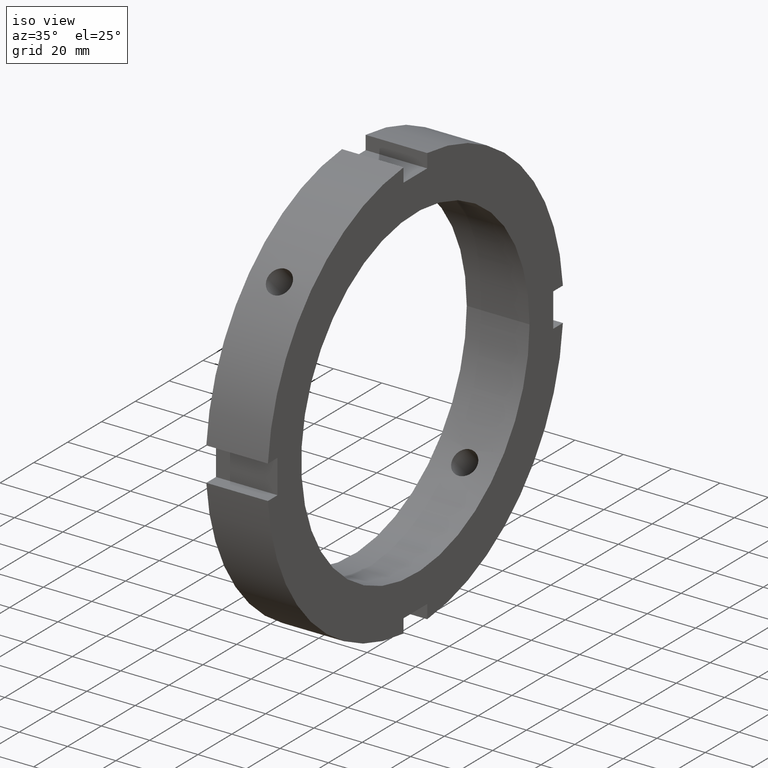
[diagram: clean part render]
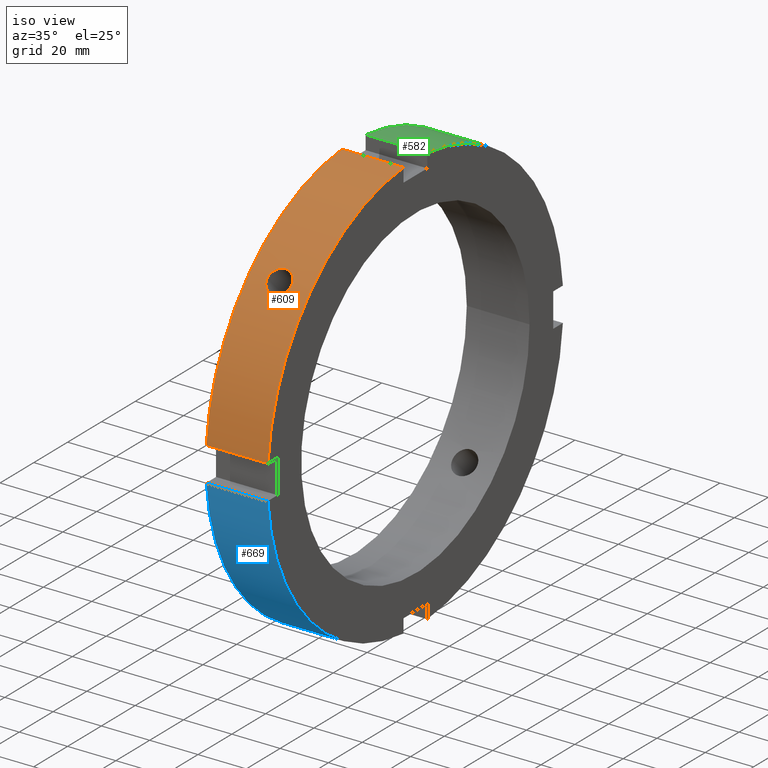
[diagram: same view with three faces highlighted in distinct colors, each labeled with its STEP entity id]
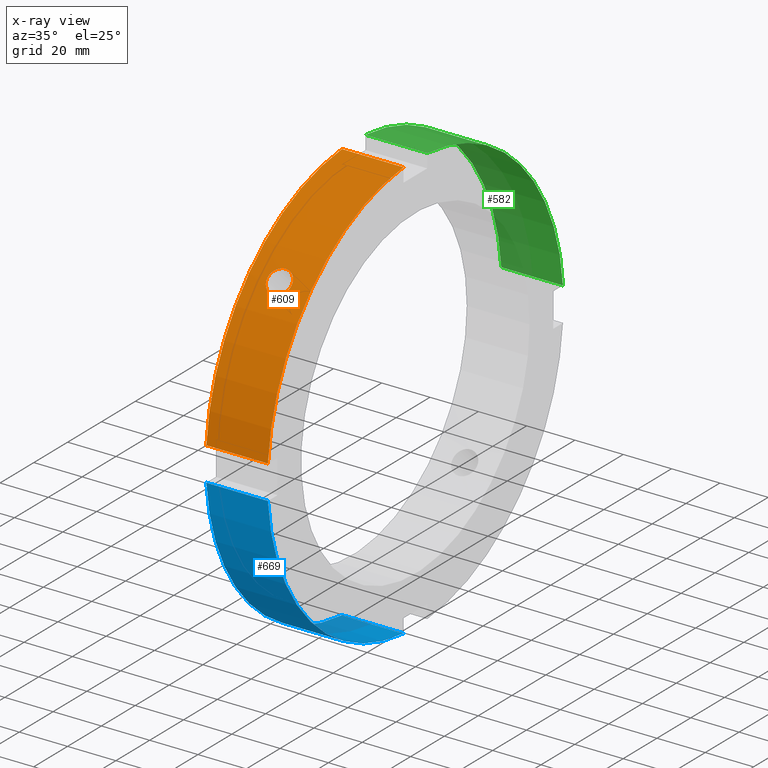
[diagram: x-ray of the same camera — body ghosted, the three highlighted faces saturated]
A machine part, iso view with three faces highlighted in distinct colors.
The next image is the same camera in x-ray (body ghosted, the three faces saturated) — at least one of them is partly hidden behind the body in this view.
Their STEP definitions:

[orange] entity #609 — the highlighted cylindrical surface (partial cylindrical patch) has radius 87.5 mm, axis along (1, 0, 0).
#73=CARTESIAN_POINT('',(12.999999999999982,-65.341599633728620,58.195578503057384));
#74=VERTEX_POINT('',#73);
#75=CARTESIAN_POINT('',(12.999999999999982,-65.341599633728620,58.195578503057391));
#76=CARTESIAN_POINT('',(12.365382475467520,-65.341599633728620,58.195578503057391));
#77=CARTESIAN_POINT('',(11.688561150498069,-65.257291249758339,58.290673530570068));
#78=CARTESIAN_POINT('',(10.443648167352066,-64.912104936060388,58.674826924133939));
#79=CARTESIAN_POINT('',(9.875544530840203,-64.650951599027323,58.963598898543893));
#80=CARTESIAN_POINT('',(8.978434507231567,-64.042524052352960,59.623876514197718));
#81=CARTESIAN_POINT('',(8.589578462428845,-63.654613330461643,60.039385767538853));
#82=CARTESIAN_POINT('',(8.073857303485749,-62.793787294294958,60.939132901855729));
#83=CARTESIAN_POINT('',(7.946999999999984,-62.320585540066133,61.423101167579688));
#84=CARTESIAN_POINT('',(7.946999999999981,-61.423101167579674,62.320585540066133));
#85=CARTESIAN_POINT('',(8.073857303485738,-60.939132901855729,62.793787294294965));
#86=CARTESIAN_POINT('',(8.589578462428833,-60.039385767538846,63.654613330461665));
#87=CARTESIAN_POINT('',(8.978434507231563,-59.623876514197711,64.042524052352974));
#88=CARTESIAN_POINT('',(9.875544530840198,-58.963598898543879,64.650951599027323));
#89=CARTESIAN_POINT('',(10.443648167352062,-58.674826924133924,64.912104936060416));
#90=CARTESIAN_POINT('',(11.688561150498069,-58.290673530570054,65.257291249758353));
#91=CARTESIAN_POINT('',(12.365382475467520,-58.195578503057384,65.341599633728634));
#92=CARTESIAN_POINT('',(13.634617524532446,-58.195578503057384,65.341599633728634));
#93=CARTESIAN_POINT('',(14.311438849501897,-58.290673530570054,65.257291249758353));
#94=CARTESIAN_POINT('',(15.556351832647898,-58.674826924133924,64.912104936060416));
#95=CARTESIAN_POINT('',(16.124455469159763,-58.963598898543879,64.650951599027323));
#96=CARTESIAN_POINT('',(17.021565492768399,-59.623876514197711,64.042524052352960));
#97=CARTESIAN_POINT('',(17.410421537571128,-60.039385767538846,63.654613330461657));
#98=CARTESIAN_POINT('',(17.926142696514226,-60.939132901855743,62.793787294294958));
#99=CARTESIAN_POINT('',(18.052999999999983,-61.423101167579674,62.320585540066133));
#100=CARTESIAN_POINT('',(18.052999999999983,-62.320585540066133,61.423101167579688));
#101=CARTESIAN_POINT('',(17.926142696514219,-62.793787294294958,60.939132901855743));
#102=CARTESIAN_POINT('',(17.410421537571121,-63.654613330461643,60.039385767538853));
#103=CARTESIAN_POINT('',(17.021565492768399,-64.042524052352960,59.623876514197718));
#104=CARTESIAN_POINT('',(16.124455469159763,-64.650951599027323,58.963598898543893));
#105=CARTESIAN_POINT('',(15.556351832647904,-64.912104936060388,58.674826924133939));
#106=CARTESIAN_POINT('',(14.311438849501902,-65.257291249758325,58.290673530570068));
#107=CARTESIAN_POINT('',(13.634617524532445,-65.341599633728620,58.195578503057384));
#108=CARTESIAN_POINT('',(12.999999999999980,-65.341599633728620,58.195578503057384));
#109=B_SPLINE_CURVE_WITH_KNOTS('',3,(#75,#76,#77,#78,#79,#80,#81,#82,#83,#84,#85,#86,#87,#88,#89,#90,#91,#92,#93,#94,#95,#96,#97,#98,#99,#100,#101,#102,#103,#104,#105,#106,#107,#108),.UNSPECIFIED.,.T.,.U.,(4,2,2,2,2,2,2,2,2,2,2,2,2,2,2,2,4),(0.0,0.190385257359739,0.380770514719478,0.571155700457715,0.761540886195952,0.951926071934189,1.142311257672426,1.332696515032165,1.523081772391905,1.713467029751643,1.903852287111383,2.094237472849620,2.284622658587857,2.475007844326094,2.665393030064331,2.855778287424070,3.046163544783809),.UNSPECIFIED.);
#110=EDGE_CURVE('',#74,#74,#109,.T.);
#353=CARTESIAN_POINT('',(0.499999999999976,-87.219550560639789,7.000000000000007));
#354=VERTEX_POINT('',#353);
#369=CARTESIAN_POINT('',(25.999999999999979,-87.219550560639789,7.000000000000007));
#370=VERTEX_POINT('',#369);
#377=CARTESIAN_POINT('',(0.499999999999975,-87.219550560639789,7.000000000000006));
#378=DIRECTION('',(1.0,0.0,0.0));
#379=VECTOR('',#378,25.500000000000004);
#380=LINE('',#377,#379);
#381=EDGE_CURVE('',#354,#370,#380,.T.);
#493=CARTESIAN_POINT('',(0.499999999999976,-6.999999999999991,87.219550560639789));
#494=VERTEX_POINT('',#493);
#503=CARTESIAN_POINT('',(25.999999999999979,-6.999999999999991,87.219550560639789));
#504=VERTEX_POINT('',#503);
#505=CARTESIAN_POINT('',(25.999999999999979,-6.999999999999989,87.219550560639789));
#506=DIRECTION('',(-1.0,0.0,0.0));
#507=VECTOR('',#506,25.500000000000004);
#508=LINE('',#505,#507);
#509=EDGE_CURVE('',#504,#494,#508,.T.);
#583=CARTESIAN_POINT('',(13.249999999999977,0.0,0.0));
#584=DIRECTION('',(1.0,0.0,0.0));
#585=DIRECTION('',(0.0,1.0,0.0));
#586=AXIS2_PLACEMENT_3D('',#583,#584,#585);
#587=CYLINDRICAL_SURFACE('',#586,87.500000000000000);
#588=ORIENTED_EDGE('',*,*,#381,.T.);
#589=CARTESIAN_POINT('',(25.999999999999979,0.0,0.0));
#590=DIRECTION('',(1.0,0.0,0.0));
#591=DIRECTION('',(0.0,1.0,0.0));
#592=AXIS2_PLACEMENT_3D('',#589,#590,#591);
#593=CIRCLE('',#592,87.500000000000000);
#594=EDGE_CURVE('',#504,#370,#593,.T.);
#595=ORIENTED_EDGE('',*,*,#594,.F.);
#596=ORIENTED_EDGE('',*,*,#509,.T.);
#597=CARTESIAN_POINT('',(0.499999999999976,0.0,0.0));
#598=DIRECTION('',(1.0,0.0,0.0));
#599=DIRECTION('',(0.0,1.0,0.0));
#600=AXIS2_PLACEMENT_3D('',#597,#598,#599);
#601=CIRCLE('',#600,87.500000000000000);
#602=EDGE_CURVE('',#494,#354,#601,.T.);
#603=ORIENTED_EDGE('',*,*,#602,.T.);
#604=EDGE_LOOP('',(#588,#595,#596,#603));
#605=FACE_OUTER_BOUND('',#604,.T.);
#606=ORIENTED_EDGE('',*,*,#110,.T.);
#607=EDGE_LOOP('',(#606));
#608=FACE_BOUND('',#607,.T.);
#609=ADVANCED_FACE('',(#605,#608),#587,.T.);

[blue] entity #669 — the highlighted cylindrical surface (partial cylindrical patch) has radius 87.5 mm, axis along (1, 0, 0).
#251=CARTESIAN_POINT('',(0.499999999999976,-7.000000000000012,-87.219550560639789));
#252=VERTEX_POINT('',#251);
#267=CARTESIAN_POINT('',(25.999999999999979,-7.000000000000012,-87.219550560639789));
#268=VERTEX_POINT('',#267);
#275=CARTESIAN_POINT('',(0.499999999999975,-7.000000000000012,-87.219550560639789));
#276=DIRECTION('',(1.0,0.0,0.0));
#277=VECTOR('',#276,25.500000000000004);
#278=LINE('',#275,#277);
#279=EDGE_CURVE('',#252,#268,#278,.T.);
#391=CARTESIAN_POINT('',(0.499999999999976,-87.219550560639789,-6.999999999999985));
#392=VERTEX_POINT('',#391);
#401=CARTESIAN_POINT('',(25.999999999999979,-87.219550560639789,-6.999999999999985));
#402=VERTEX_POINT('',#401);
#403=CARTESIAN_POINT('',(25.999999999999979,-87.219550560639789,-6.999999999999985));
#404=DIRECTION('',(-1.0,0.0,0.0));
#405=VECTOR('',#404,25.500000000000004);
#406=LINE('',#403,#405);
#407=EDGE_CURVE('',#402,#392,#406,.T.);
#646=CARTESIAN_POINT('',(13.249999999999977,0.0,0.0));
#647=DIRECTION('',(1.0,0.0,0.0));
#648=DIRECTION('',(0.0,1.0,0.0));
#649=AXIS2_PLACEMENT_3D('',#646,#647,#648);
#650=CYLINDRICAL_SURFACE('',#649,87.500000000000000);
#651=ORIENTED_EDGE('',*,*,#279,.T.);
#652=CARTESIAN_POINT('',(25.999999999999979,0.0,0.0));
#653=DIRECTION('',(1.0,0.0,0.0));
#654=DIRECTION('',(0.0,1.0,0.0));
#655=AXIS2_PLACEMENT_3D('',#652,#653,#654);
#656=CIRCLE('',#655,87.500000000000000);
#657=EDGE_CURVE('',#402,#268,#656,.T.);
#658=ORIENTED_EDGE('',*,*,#657,.F.);
#659=ORIENTED_EDGE('',*,*,#407,.T.);
#660=CARTESIAN_POINT('',(0.499999999999976,0.0,0.0));
#661=DIRECTION('',(1.0,0.0,0.0));
#662=DIRECTION('',(0.0,1.0,0.0));
#663=AXIS2_PLACEMENT_3D('',#660,#661,#662);
#664=CIRCLE('',#663,87.500000000000000);
#665=EDGE_CURVE('',#392,#252,#664,.T.);
#666=ORIENTED_EDGE('',*,*,#665,.T.);
#667=EDGE_LOOP('',(#651,#658,#659,#666));
#668=FACE_OUTER_BOUND('',#667,.T.);
#669=ADVANCED_FACE('',(#668),#650,.T.);

[green] entity #582 — the highlighted cylindrical surface (partial cylindrical patch) has radius 87.5 mm, axis along (1, 0, 0).
#455=CARTESIAN_POINT('',(0.499999999999976,7.000000000000002,87.219550560639789));
#456=VERTEX_POINT('',#455);
#471=CARTESIAN_POINT('',(25.999999999999979,7.000000000000002,87.219550560639789));
#472=VERTEX_POINT('',#471);
#479=CARTESIAN_POINT('',(0.499999999999975,7.000000000000002,87.219550560639789));
#480=DIRECTION('',(1.0,0.0,0.0));
#481=VECTOR('',#480,25.500000000000004);
#482=LINE('',#479,#481);
#483=EDGE_CURVE('',#456,#472,#482,.T.);
#550=CARTESIAN_POINT('',(13.249999999999977,0.0,0.0));
#551=DIRECTION('',(1.0,0.0,0.0));
#552=DIRECTION('',(0.0,1.0,0.0));
#553=AXIS2_PLACEMENT_3D('',#550,#551,#552);
#554=CYLINDRICAL_SURFACE('',#553,87.500000000000000);
#555=ORIENTED_EDGE('',*,*,#483,.T.);
#556=CARTESIAN_POINT('',(25.999999999999979,87.219550560639789,6.999999999999996));
#557=VERTEX_POINT('',#556);
#558=CARTESIAN_POINT('',(25.999999999999979,0.0,0.0));
#559=DIRECTION('',(1.0,0.0,0.0));
#560=DIRECTION('',(0.0,1.0,0.0));
#561=AXIS2_PLACEMENT_3D('',#558,#559,#560);
#562=CIRCLE('',#561,87.500000000000000);
#563=EDGE_CURVE('',#557,#472,#562,.T.);
#564=ORIENTED_EDGE('',*,*,#563,.F.);
#565=CARTESIAN_POINT('',(0.499999999999976,87.219550560639789,6.999999999999996));
#566=VERTEX_POINT('',#565);
#567=CARTESIAN_POINT('',(25.999999999999979,87.219550560639789,6.999999999999996));
#568=DIRECTION('',(-1.0,0.0,0.0));
#569=VECTOR('',#568,25.500000000000004);
#570=LINE('',#567,#569);
#571=EDGE_CURVE('',#557,#566,#570,.T.);
#572=ORIENTED_EDGE('',*,*,#571,.T.);
#573=CARTESIAN_POINT('',(0.499999999999976,0.0,0.0));
#574=DIRECTION('',(1.0,0.0,0.0));
#575=DIRECTION('',(0.0,1.0,0.0));
#576=AXIS2_PLACEMENT_3D('',#573,#574,#575);
#577=CIRCLE('',#576,87.500000000000000);
#578=EDGE_CURVE('',#566,#456,#577,.T.);
#579=ORIENTED_EDGE('',*,*,#578,.T.);
#580=EDGE_LOOP('',(#555,#564,#572,#579));
#581=FACE_OUTER_BOUND('',#580,.T.);
#582=ADVANCED_FACE('',(#581),#554,.T.);